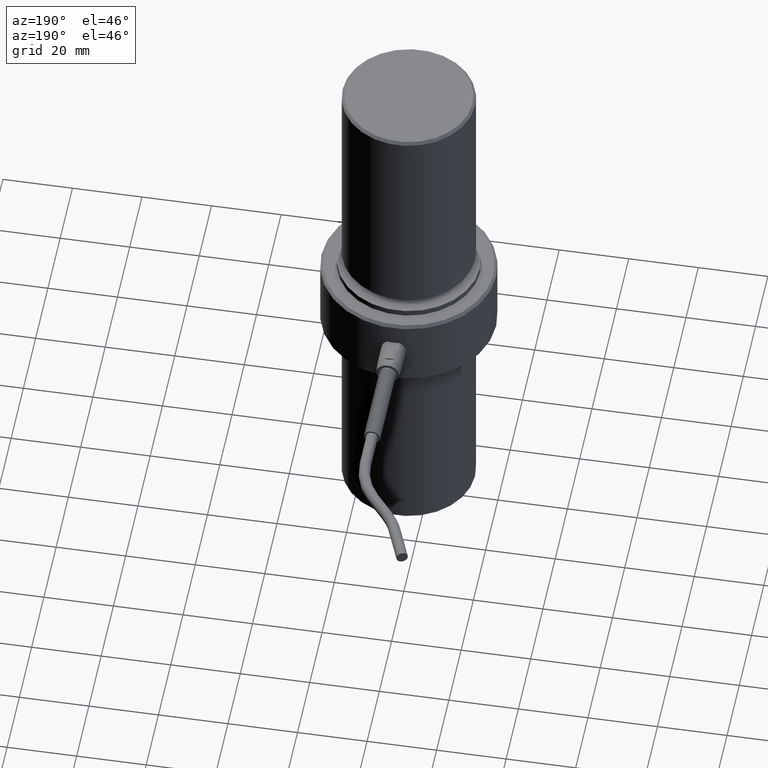
[diagram: clean part render]
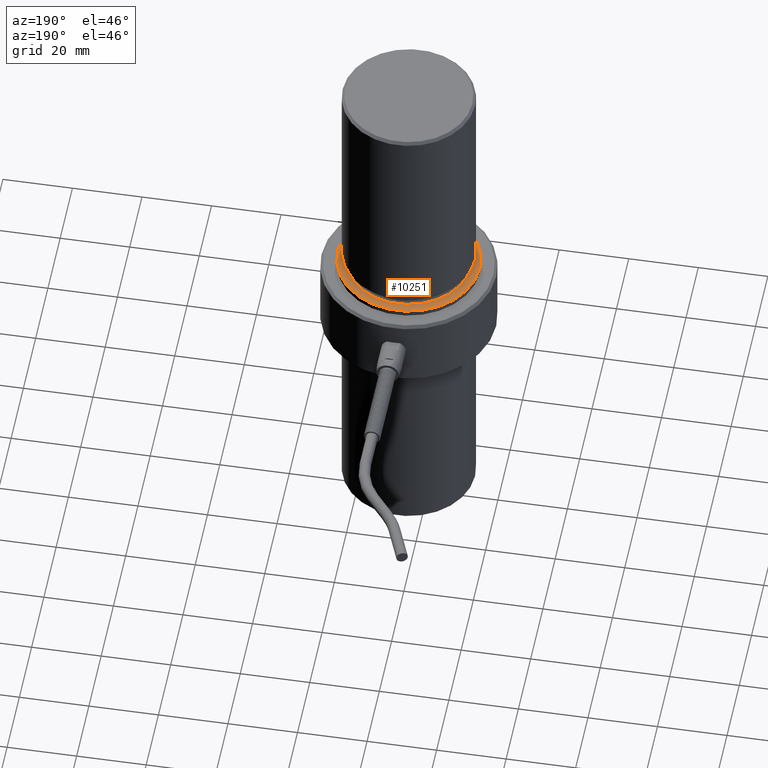
[diagram: same view with one face highlighted and labeled with its STEP entity id]
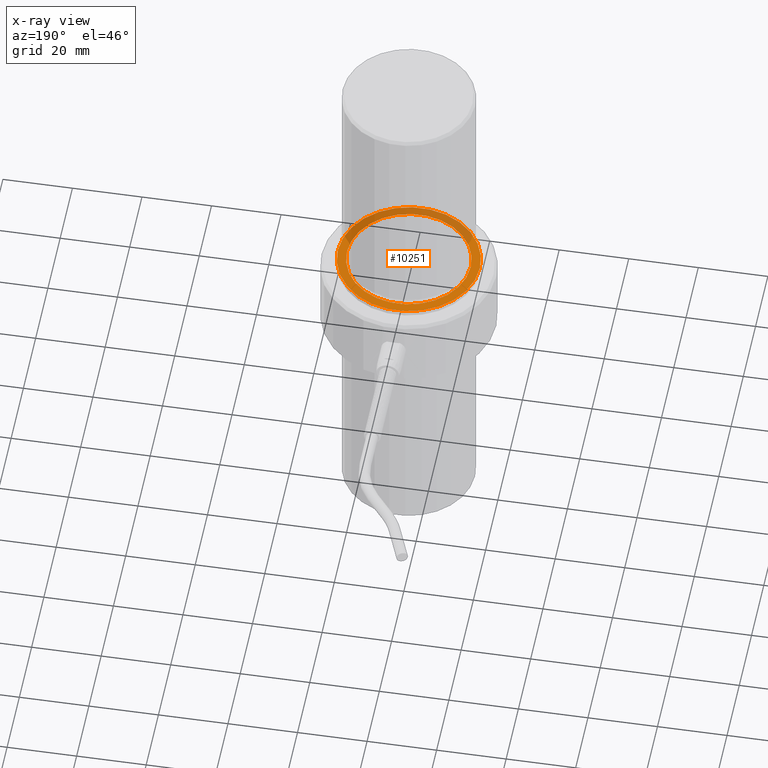
[diagram: x-ray of the same camera — body ghosted, the highlighted face saturated]
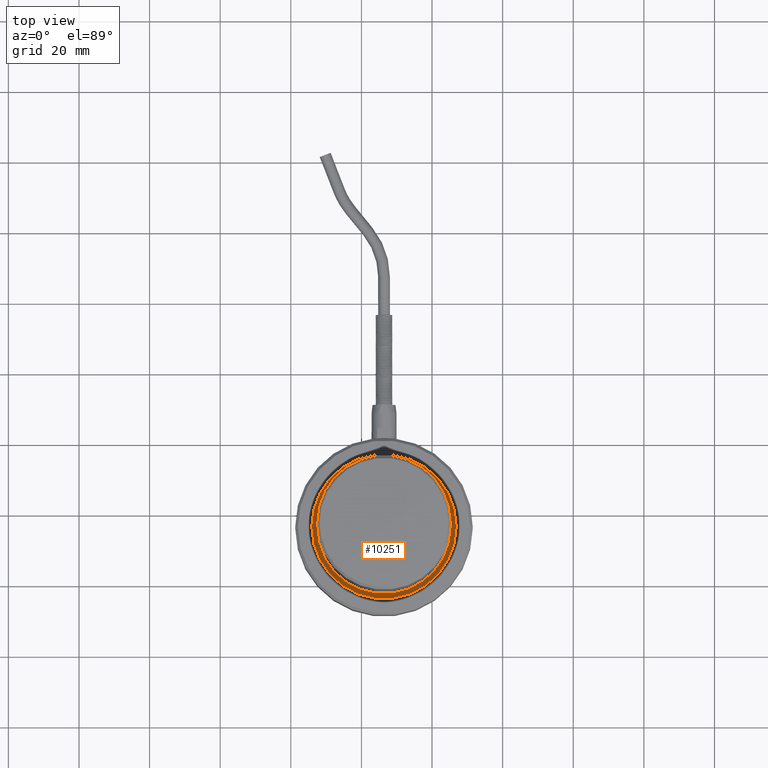
[diagram: same view with one face highlighted and labeled with its STEP entity id]
A machine part, auxiliary view. The second image highlights one B-rep face of the part: STEP entity #10251.
The next image is the same camera in x-ray: the body ghosted, the highlighted face saturated — about 37% of this face is hidden behind the body in this view.
A second angle (top view) of the same face is appended — the face is thin or edge-on in the first view.
In plain terms, the highlighted planar face has unit normal (0, 0, 1).
Its self-contained STEP definition (entity closure, byte-faithful):
#6874=CARTESIAN_POINT('',(-0.804999999999993,9.858081E-017,-0.435999999999998));
#6875=VERTEX_POINT('',#6874);
#6876=CARTESIAN_POINT('',(0.0,0.0,-0.435999999999998));
#6877=DIRECTION('',(0.0,0.0,-1.0));
#6878=DIRECTION('',(1.0,0.0,0.0));
#6879=AXIS2_PLACEMENT_3D('',#6876,#6877,#6878);
#6880=CIRCLE('',#6879,0.804999999999993);
#6881=EDGE_CURVE('',#6875,#6875,#6880,.T.);
#7014=CARTESIAN_POINT('',(0.699999999999999,0.0,-0.436000000000000));
#7015=VERTEX_POINT('',#7014);
#7016=CARTESIAN_POINT('',(-8.881784E-016,0.0,-0.435999999999998));
#7017=DIRECTION('',(0.0,0.0,-1.0));
#7018=DIRECTION('',(-1.0,0.0,0.0));
#7019=AXIS2_PLACEMENT_3D('',#7016,#7017,#7018);
#7020=CIRCLE('',#7019,0.700000000000000);
#7021=EDGE_CURVE('',#7015,#7015,#7020,.T.);
#10240=CARTESIAN_POINT('',(0.402499999999996,0.0,-0.435999999999998));
#10241=DIRECTION('',(0.0,0.0,-1.0));
#10242=DIRECTION('',(-1.0,0.0,0.0));
#10243=AXIS2_PLACEMENT_3D('',#10240,#10241,#10242);
#10244=PLANE('',#10243);
#10245=ORIENTED_EDGE('',*,*,#6881,.T.);
#10246=EDGE_LOOP('',(#10245));
#10247=FACE_OUTER_BOUND('',#10246,.T.);
#10248=ORIENTED_EDGE('',*,*,#7021,.F.);
#10249=EDGE_LOOP('',(#10248));
#10250=FACE_BOUND('',#10249,.T.);
#10251=ADVANCED_FACE('',(#10247,#10250),#10244,.T.);